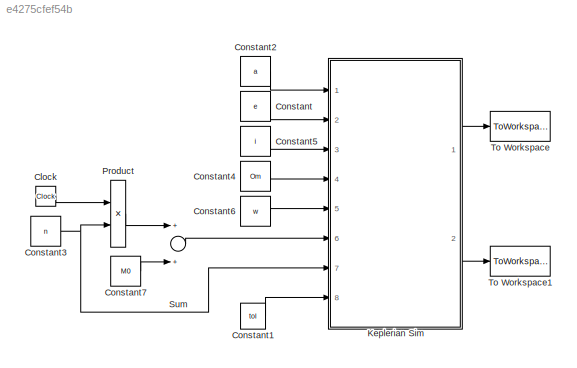
MODEL slx_e4275cfef54b
KIND model
CONFIG AbsTol = auto
CONFIG EnableMultiTasking = off
CONFIG FixedStep = StepSize
CONFIG MaxStep = auto
CONFIG MinStep = auto
CONFIG RelTol = 1e-3
CONFIG SampleTimeConstraint = Unconstrained
CONFIG Solver = FixedStepAuto
CONFIG SolverName = FixedStepAuto
CONFIG StartTime = StartTime
CONFIG StopTime = StopTime
BLOCK [Clock] Clock
BLOCK [Constant] Constant
  Value = e
BLOCK [Constant] Constant1
  Value = tol
BLOCK [Constant] Constant2
  Value = a
BLOCK [Constant] Constant3
  Value = n
BLOCK [Constant] Constant4
  Value = Om
BLOCK [Constant] Constant5
  Value = i
BLOCK [Constant] Constant6
  Value = w
BLOCK [Constant] Constant7
  Value = M0
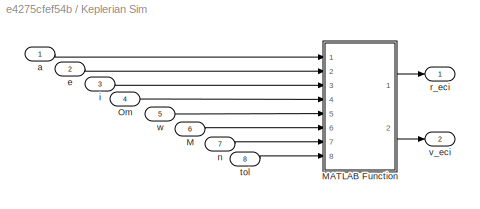
BLOCK [SubSystem] Keplerian Sim
  Ports = [8, 2]
  RequestExecContextInheritance = off
  Variant = off
BLOCK [Inport] Keplerian Sim/M
  IconDisplay = Port number
  Port = 6
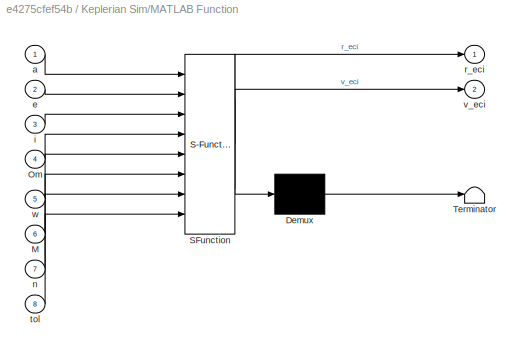
BLOCK [SubSystem] Keplerian Sim/MATLAB Function
  ErrorFcn = Stateflow.Translate.translate
  PermitHierarchicalResolution = ExplicitOnly
  Ports = [8, 2]
  RequestExecContextInheritance = off
  SFBlockType = MATLAB Function
  TreatAsAtomicUnit = on
  Variant = off
BLOCK [Demux] Keplerian Sim/MATLAB Function/ Demux 
  Outputs = 1
  Ports = [1, 1]
BLOCK [S-Function] Keplerian Sim/MATLAB Function/ SFunction 
  EnableBusSupport = on
  FunctionName = sf_sfun
  PortCounts = [8 3]
  Ports = [8, 3]
  SFcnIsStateOwnerBlock = off
  SFunctionDeploymentMode = off
  Tag = Stateflow S-Function stilltesting2 2
BLOCK [Terminator] Keplerian Sim/MATLAB Function/ Terminator 
BLOCK [Inport] Keplerian Sim/MATLAB Function/M
  IconDisplay = Port number
  Port = 6
BLOCK [Inport] Keplerian Sim/MATLAB Function/Om
  IconDisplay = Port number
  Port = 4
BLOCK [Inport] Keplerian Sim/MATLAB Function/a
  IconDisplay = Port number
BLOCK [Inport] Keplerian Sim/MATLAB Function/e
  IconDisplay = Port number
  Port = 2
BLOCK [Inport] Keplerian Sim/MATLAB Function/i
  IconDisplay = Port number
  Port = 3
BLOCK [Inport] Keplerian Sim/MATLAB Function/n
  IconDisplay = Port number
  Port = 7
BLOCK [Outport] Keplerian Sim/MATLAB Function/r_eci
  IconDisplay = Port number
BLOCK [Inport] Keplerian Sim/MATLAB Function/tol
  IconDisplay = Port number
  Port = 8
BLOCK [Outport] Keplerian Sim/MATLAB Function/v_eci
  IconDisplay = Port number
  Port = 2
BLOCK [Inport] Keplerian Sim/MATLAB Function/w
  IconDisplay = Port number
  Port = 5
BLOCK [Inport] Keplerian Sim/Om
  IconDisplay = Port number
  Port = 4
BLOCK [Inport] Keplerian Sim/a
  IconDisplay = Port number
BLOCK [Inport] Keplerian Sim/e
  IconDisplay = Port number
  Port = 2
BLOCK [Inport] Keplerian Sim/i
  IconDisplay = Port number
  Port = 3
BLOCK [Inport] Keplerian Sim/n
  IconDisplay = Port number
  Port = 7
BLOCK [Outport] Keplerian Sim/r_eci
  IconDisplay = Port number
BLOCK [Inport] Keplerian Sim/tol
  IconDisplay = Port number
  Port = 8
BLOCK [Outport] Keplerian Sim/v_eci
  IconDisplay = Port number
  Port = 2
BLOCK [Inport] Keplerian Sim/w
  IconDisplay = Port number
  Port = 5
BLOCK [Product] Product
  InputSameDT = off
  OutDataTypeStr = Inherit: Inherit via internal rule
  Ports = [2, 1]
  RndMeth = Floor
  SaturateOnIntegerOverflow = off
BLOCK [Sum] Sum
  InputSameDT = off
  OutDataTypeStr = Inherit: Inherit via internal rule
  Ports = [2, 1]
  SaturateOnIntegerOverflow = off
BLOCK [ToWorkspace] To Workspace
  FixptAsFi = on
  MaxDataPoints = inf
  Ports = [1]
  SampleTime = -1
  Save2DSignal = 3-D array (concatenate along third dimension)
  VariableName = r_eci
BLOCK [ToWorkspace] To Workspace1
  FixptAsFi = on
  MaxDataPoints = inf
  Ports = [1]
  SampleTime = -1
  Save2DSignal = 3-D array (concatenate along third dimension)
  VariableName = v_eci
LINE Clock:1 -> Product:1
LINE Constant1:1 -> Keplerian Sim:8
LINE Constant2:1 -> Keplerian Sim:1
NET Constant3:1 -> Keplerian Sim:7, Product:2
LINE Constant4:1 -> Keplerian Sim:4
LINE Constant5:1 -> Keplerian Sim:3
LINE Constant6:1 -> Keplerian Sim:5
LINE Constant7:1 -> Sum:2
LINE Constant:1 -> Keplerian Sim:2
LINE Keplerian Sim/M:1 -> Keplerian Sim/MATLAB Function:6
LINE Keplerian Sim/MATLAB Function:1 -> Keplerian Sim/r_eci:1
LINE Keplerian Sim/MATLAB Function:2 -> Keplerian Sim/v_eci:1
LINE Keplerian Sim/Om:1 -> Keplerian Sim/MATLAB Function:4
LINE Keplerian Sim/a:1 -> Keplerian Sim/MATLAB Function:1
LINE Keplerian Sim/e:1 -> Keplerian Sim/MATLAB Function:2
LINE Keplerian Sim/i:1 -> Keplerian Sim/MATLAB Function:3
LINE Keplerian Sim/n:1 -> Keplerian Sim/MATLAB Function:7
LINE Keplerian Sim/tol:1 -> Keplerian Sim/MATLAB Function:8
LINE Keplerian Sim/w:1 -> Keplerian Sim/MATLAB Function:5
LINE Keplerian Sim:1 -> To Workspace:1
LINE Keplerian Sim:2 -> To Workspace1:1
LINE Product:1 -> Sum:1
LINE Sum:1 -> Keplerian Sim:6
note: NET lines group one-source signal fan-out (src -> all destinations, sorted); 1:1 wires keep LINE
CHART Keplerian Sim/MATLAB Function states=1 transitions=1
  STATE_LABEL 'eML_blk_kernel()'
  STATE_LABEL 'SCRIPT:\nfunction [r_eci, v_eci] = oe2eci(a,e,i,Om,w,M,n,tol)\n\n% limit M\nwhile M > 2*pi\n    M = M -2*pi;\nend\n\nE = M2E(M, e, tol);    % rad\n\n% Compute radius and velocity of orbit in perifocal coordinates\nrPeri = [        a*(cos(E) - e);\n         a*sqrt(1 - e^2)*sin(E);\n                              0];\n\nvPeriComp = [             -sin(E);\n             sqrt(1 - e^2)*cos(E);\n                          ...<+711ch>'
